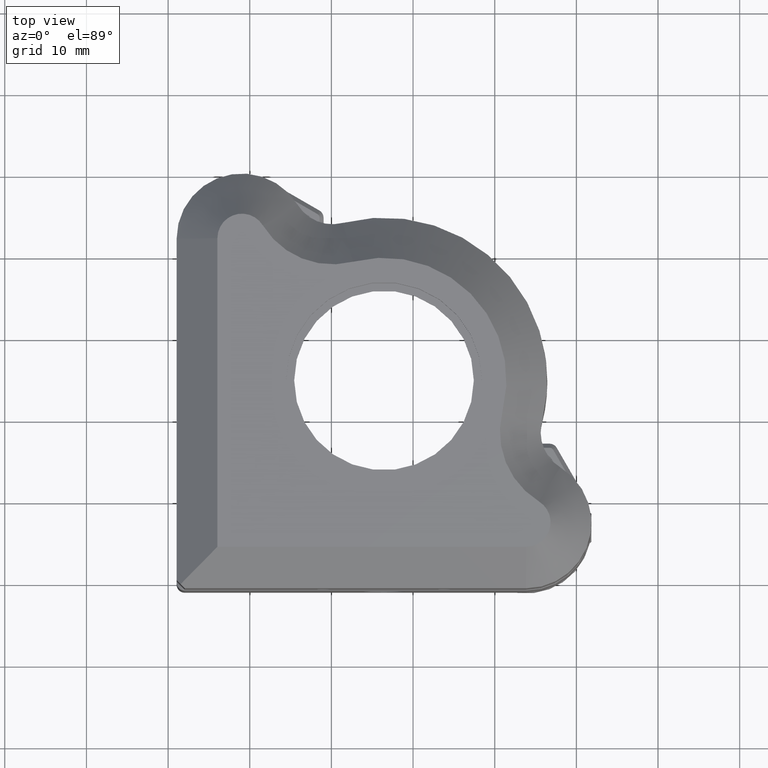
[diagram: clean part render]
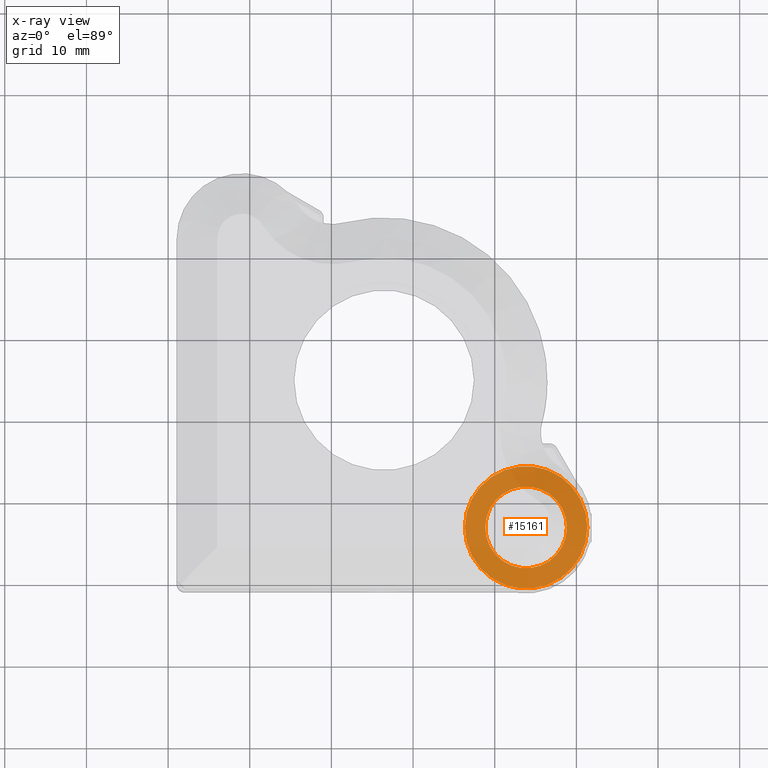
[diagram: x-ray — body ghosted, one internal face saturated and labeled with its STEP entity id]
A machine part, top view, then the same camera in x-ray: the body is ghosted and one INTERNAL B-rep face — a face not visible from any outside direction — is saturated and labeled: STEP entity #15161.
In plain terms, the highlighted planar face has unit normal (0, 0, -1).
Its self-contained STEP definition (entity closure, byte-faithful):
#335 = CIRCLE ( 'NONE', #4957, 7.500000000000000000 ) ;
#1265 = AXIS2_PLACEMENT_3D ( 'NONE', #18717, #14261, #23194 ) ;
#2520 = CARTESIAN_POINT ( 'NONE',  ( 23.84133761737279755, -31.20469378309720909, 22.22958492358062443 ) ) ;
#3383 = CIRCLE ( 'NONE', #20413, 5.000000000000000888 ) ;
#3530 = EDGE_CURVE ( 'NONE', #25689, #24051, #3383, .T. ) ;
#4552 = FACE_OUTER_BOUND ( 'NONE', #21768, .T. ) ;
#4599 = CARTESIAN_POINT ( 'NONE',  ( 23.84133761737279755, -23.20469378309720909, 22.22958492358062443 ) ) ;
#4957 = AXIS2_PLACEMENT_3D ( 'NONE', #5659, #27261, #25655 ) ;
#5659 = CARTESIAN_POINT ( 'NONE',  ( 23.84133761737279755, -23.20469378309720909, 22.22958492358062443 ) ) ;
#6379 = AXIS2_PLACEMENT_3D ( 'NONE', #2520, #23610, #10355 ) ;
#7732 = CARTESIAN_POINT ( 'NONE',  ( 16.34133761737280111, -23.20469378309720909, 22.22958492358062443 ) ) ;
#8346 = PLANE ( 'NONE',  #6379 ) ;
#8802 = CARTESIAN_POINT ( 'NONE',  ( 31.34133761737279400, -23.20469378309720909, 22.22958492358062443 ) ) ;
#9253 = ORIENTED_EDGE ( 'NONE', *, *, #3530, .F. ) ;
#10355 = DIRECTION ( 'NONE',  ( 1.000000000000000000, 5.551115123125782702E-17, 0.000000000000000000 ) ) ;
#10862 = CARTESIAN_POINT ( 'NONE',  ( 23.84133761737279755, -23.20469378309720909, 22.22958492358062443 ) ) ;
#11223 = DIRECTION ( 'NONE',  ( -1.000000000000000000, 0.000000000000000000, 0.000000000000000000 ) ) ;
#12651 = FACE_BOUND ( 'NONE', #15414, .T. ) ;
#13310 = EDGE_CURVE ( 'NONE', #24051, #25689, #19642, .T. ) ;
#14125 = EDGE_CURVE ( 'NONE', #15786, #24313, #335, .T. ) ;
#14261 = DIRECTION ( 'NONE',  ( -0.000000000000000000, -0.000000000000000000, 1.000000000000000000 ) ) ;
#14867 = EDGE_CURVE ( 'NONE', #24313, #15786, #25228, .T. ) ;
#15161 = ADVANCED_FACE ( 'NONE', ( #4552, #12651 ), #8346, .F. ) ;
#15414 = EDGE_LOOP ( 'NONE', ( #9253, #20242 ) ) ;
#15466 = DIRECTION ( 'NONE',  ( -1.000000000000000000, 0.000000000000000000, 0.000000000000000000 ) ) ;
#15786 = VERTEX_POINT ( 'NONE', #7732 ) ;
#17849 = DIRECTION ( 'NONE',  ( 0.000000000000000000, 0.000000000000000000, 1.000000000000000000 ) ) ;
#18717 = CARTESIAN_POINT ( 'NONE',  ( 23.84133761737279755, -23.20469378309720909, 22.22958492358062443 ) ) ;
#19642 = CIRCLE ( 'NONE', #21962, 5.000000000000000888 ) ;
#20242 = ORIENTED_EDGE ( 'NONE', *, *, #13310, .F. ) ;
#20413 = AXIS2_PLACEMENT_3D ( 'NONE', #4599, #17849, #11223 ) ;
#21768 = EDGE_LOOP ( 'NONE', ( #22368, #23840 ) ) ;
#21962 = AXIS2_PLACEMENT_3D ( 'NONE', #10862, #22252, #15466 ) ;
#22252 = DIRECTION ( 'NONE',  ( 0.000000000000000000, 0.000000000000000000, 1.000000000000000000 ) ) ;
#22368 = ORIENTED_EDGE ( 'NONE', *, *, #14867, .T. ) ;
#23194 = DIRECTION ( 'NONE',  ( 1.000000000000000000, 0.000000000000000000, 0.000000000000000000 ) ) ;
#23610 = DIRECTION ( 'NONE',  ( 0.000000000000000000, 0.000000000000000000, -1.000000000000000000 ) ) ;
#23728 = CARTESIAN_POINT ( 'NONE',  ( 18.84133761737279400, -23.20469378309720909, 22.22958492358062443 ) ) ;
#23775 = CARTESIAN_POINT ( 'NONE',  ( 28.84133761737279755, -23.20469378309720909, 22.22958492358062443 ) ) ;
#23840 = ORIENTED_EDGE ( 'NONE', *, *, #14125, .T. ) ;
#24051 = VERTEX_POINT ( 'NONE', #23775 ) ;
#24313 = VERTEX_POINT ( 'NONE', #8802 ) ;
#25228 = CIRCLE ( 'NONE', #1265, 7.500000000000000000 ) ;
#25655 = DIRECTION ( 'NONE',  ( 1.000000000000000000, 0.000000000000000000, 0.000000000000000000 ) ) ;
#25689 = VERTEX_POINT ( 'NONE', #23728 ) ;
#27261 = DIRECTION ( 'NONE',  ( -0.000000000000000000, -0.000000000000000000, 1.000000000000000000 ) ) ;